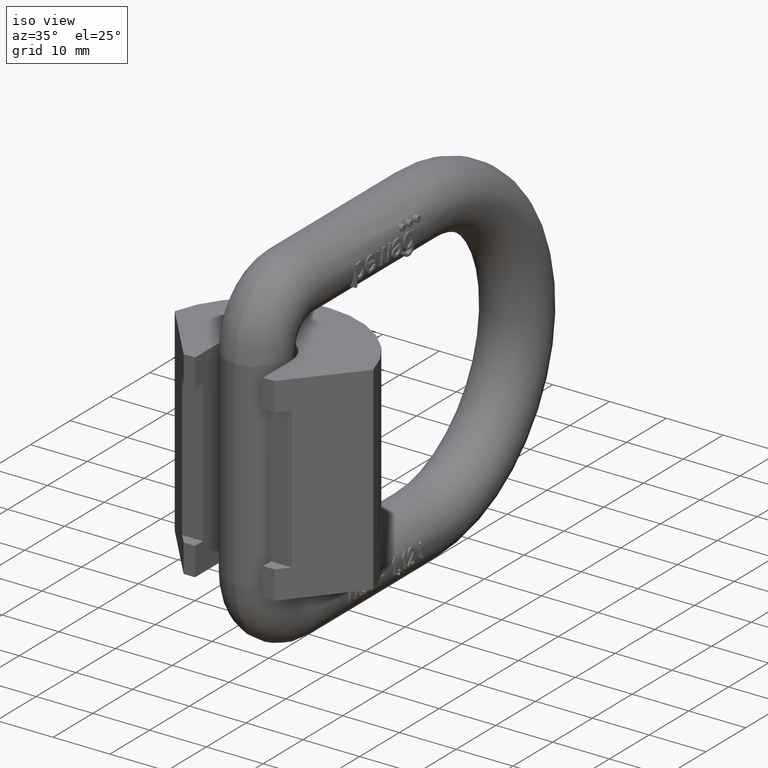
[diagram: clean part render]
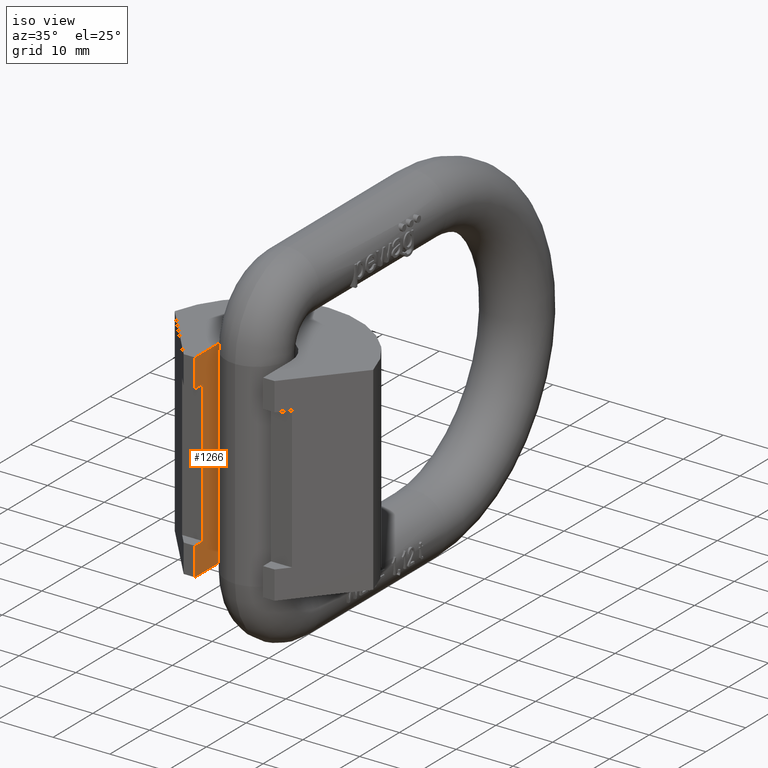
[diagram: same view with one face highlighted and labeled with its STEP entity id]
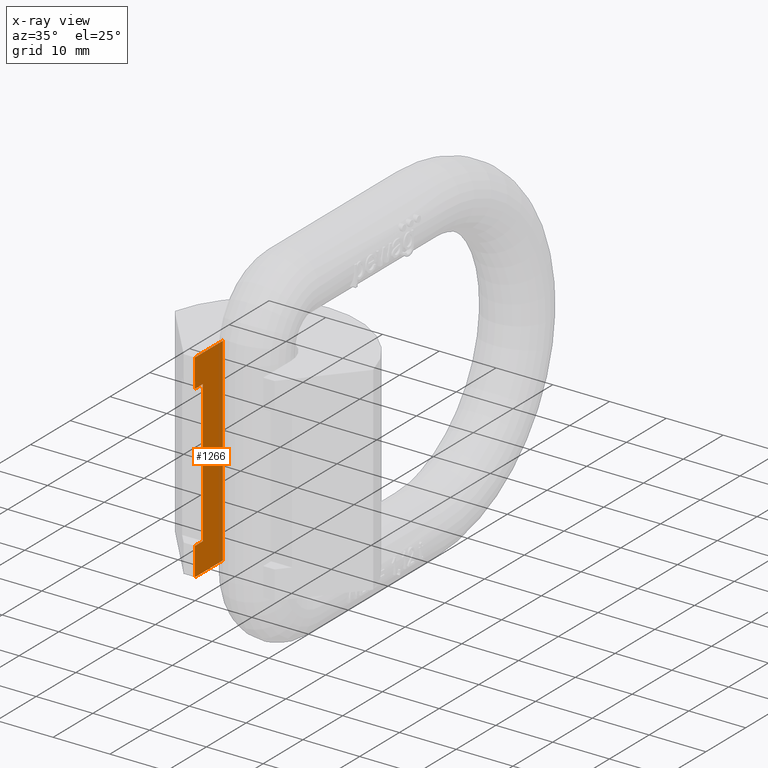
[diagram: x-ray of the same camera — body ghosted, the highlighted face saturated]
A machine part, iso view. The second image highlights one B-rep face of the part: STEP entity #1266.
The next image is the same camera in x-ray: the body ghosted, the highlighted face saturated — about 0% of this face is hidden behind the body in this view.
In plain terms, the highlighted planar face has unit normal (-1, 0, 0).
Its self-contained STEP definition (entity closure, byte-faithful):
#1039=PLANE('',#7780);
#1266=ADVANCED_FACE('',(#1703),#1039,.F.);
#1703=FACE_OUTER_BOUND('',#2101,.T.);
#2101=EDGE_LOOP('',(#2692,#2693,#2694,#2695,#2696,#2697,#2698,#2699));
#2692=ORIENTED_EDGE('',*,*,#5611,.T.);
#2693=ORIENTED_EDGE('',*,*,#5589,.T.);
#2694=ORIENTED_EDGE('',*,*,#5587,.F.);
#2695=ORIENTED_EDGE('',*,*,#5593,.F.);
#2696=ORIENTED_EDGE('',*,*,#5609,.T.);
#2697=ORIENTED_EDGE('',*,*,#5583,.T.);
#2698=ORIENTED_EDGE('',*,*,#5612,.F.);
#2699=ORIENTED_EDGE('',*,*,#5572,.F.);
#4833=VERTEX_POINT('',#9498);
#4834=VERTEX_POINT('',#9500);
#4839=VERTEX_POINT('',#9511);
#4843=VERTEX_POINT('',#9520);
#4845=VERTEX_POINT('',#9525);
#4847=VERTEX_POINT('',#9529);
#4849=VERTEX_POINT('',#9535);
#4851=VERTEX_POINT('',#9541);
#5572=EDGE_CURVE('',#4833,#4834,#6668,.T.);
#5583=EDGE_CURVE('',#4839,#4843,#6677,.T.);
#5587=EDGE_CURVE('',#4847,#4845,#6681,.T.);
#5589=EDGE_CURVE('',#4849,#4845,#6683,.T.);
#5593=EDGE_CURVE('',#4851,#4847,#6687,.T.);
#5609=EDGE_CURVE('',#4851,#4839,#6703,.T.);
#5611=EDGE_CURVE('',#4833,#4849,#6705,.T.);
#5612=EDGE_CURVE('',#4834,#4843,#6706,.T.);
#6668=LINE('',#9499,#7132);
#6677=LINE('',#9521,#7141);
#6681=LINE('',#9530,#7145);
#6683=LINE('',#9534,#7147);
#6687=LINE('',#9542,#7151);
#6703=LINE('',#9572,#7167);
#6705=LINE('',#9575,#7169);
#6706=LINE('',#9577,#7170);
#7132=VECTOR('',#8137,1.);
#7141=VECTOR('',#8152,1.);
#7145=VECTOR('',#8158,1.);
#7147=VECTOR('',#8162,1.);
#7151=VECTOR('',#8168,1.);
#7167=VECTOR('',#8196,1.);
#7169=VECTOR('',#8200,1.);
#7170=VECTOR('',#8203,1.);
#7780=AXIS2_PLACEMENT_3D('',#9578,#8204,#8205);
#8137=DIRECTION('',(0.,1.,0.));
#8152=DIRECTION('',(0.,1.,0.));
#8158=DIRECTION('',(0.,0.,1.));
#8162=DIRECTION('',(0.,1.,0.));
#8168=DIRECTION('',(0.,1.,0.));
#8196=DIRECTION('',(0.,0.,-1.));
#8200=DIRECTION('',(0.,0.,-1.));
#8203=DIRECTION('',(0.,0.,-1.));
#8204=DIRECTION('',(-1.,0.,0.));
#8205=DIRECTION('',(0.,0.,1.));
#9498=CARTESIAN_POINT('',(-6.,0.,17.5));
#9499=CARTESIAN_POINT('',(-6.,0.,17.5));
#9500=CARTESIAN_POINT('',(-6.,7.,17.5));
#9511=CARTESIAN_POINT('',(-6.,0.,-17.5));
#9520=CARTESIAN_POINT('',(-6.,7.,-17.5));
#9521=CARTESIAN_POINT('',(-6.,0.,-17.5));
#9525=CARTESIAN_POINT('',(-6.,2.,12.5));
#9529=CARTESIAN_POINT('',(-6.,2.,-12.5));
#9530=CARTESIAN_POINT('',(-6.,2.,17.5));
#9534=CARTESIAN_POINT('',(-6.,0.,12.5));
#9535=CARTESIAN_POINT('',(-6.,0.,12.5));
#9541=CARTESIAN_POINT('',(-6.,0.,-12.5));
#9542=CARTESIAN_POINT('',(-6.,0.,-12.5));
#9572=CARTESIAN_POINT('',(-6.,0.,17.5));
#9575=CARTESIAN_POINT('',(-6.,0.,17.5));
#9577=CARTESIAN_POINT('',(-6.,7.,17.5));
#9578=CARTESIAN_POINT('',(-6.,0.,17.5));